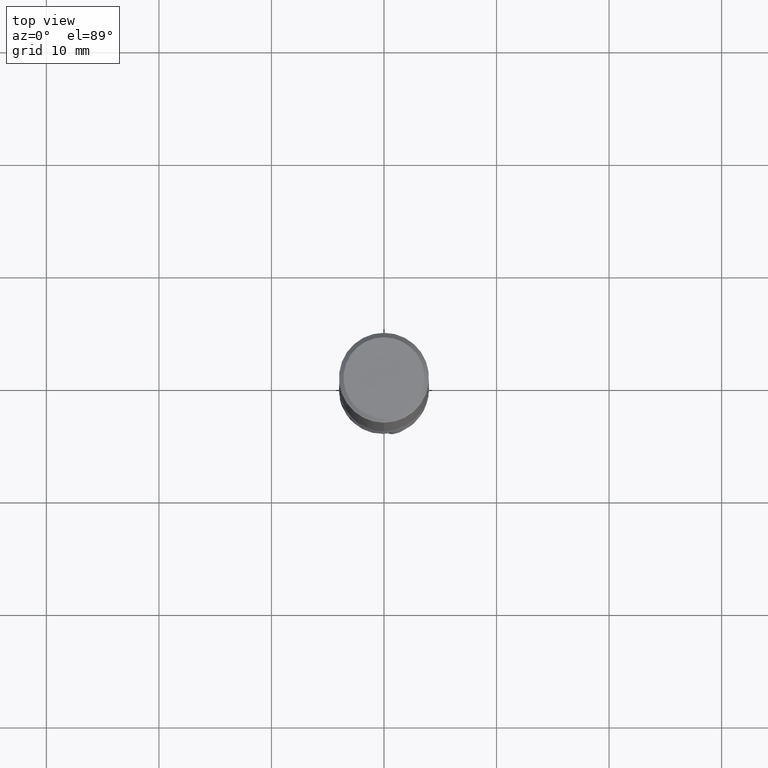
[diagram: clean part render]
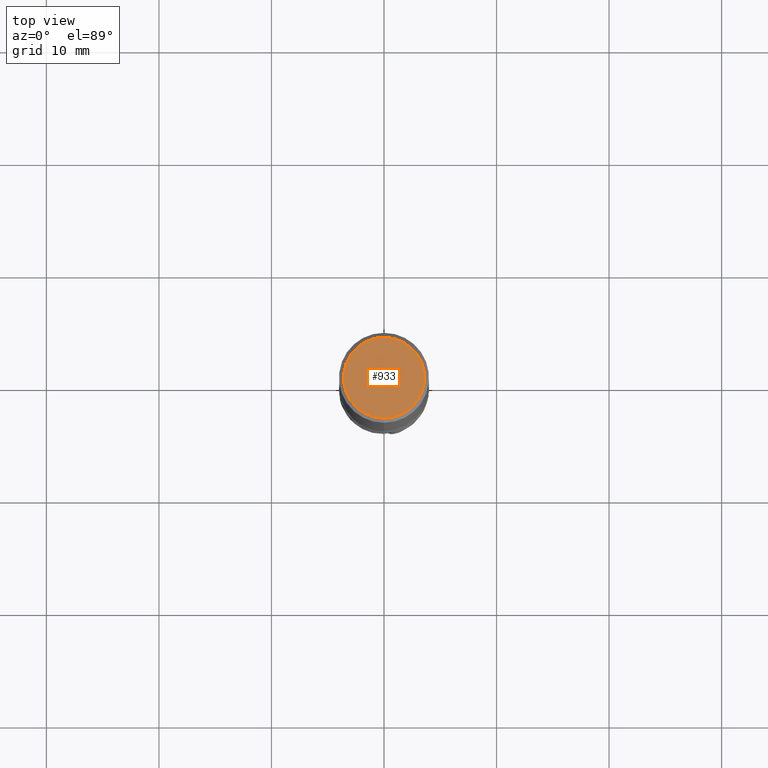
[diagram: same view with one face highlighted and labeled with its STEP entity id]
A machine part, top view. The second image highlights one B-rep face of the part: STEP entity #933.
In plain terms, the highlighted planar face has unit normal (-0, 0, 1).
Its self-contained STEP definition (entity closure, byte-faithful):
#605=EDGE_CURVE('',#1183,#833,#1648,.T.);
#833=VERTEX_POINT('',#1891);
#933=ADVANCED_FACE('',(#2002),#2003,.T.);
#1183=VERTEX_POINT('',#2271);
#1519=EDGE_CURVE('',#833,#1183,#2644,.T.);
#1648=CIRCLE('',#2934,3.6);
#1891=CARTESIAN_POINT('',(4.40858287376056E-016,-3.6,0.0));
#2002=FACE_OUTER_BOUND('',#5338,.T.);
#2003=PLANE('',#5339);
#2271=CARTESIAN_POINT('',(0.0,3.6,0.0));
#2644=CIRCLE('',#10744,3.6);
#2934=AXIS2_PLACEMENT_3D('',#11275,#11276,#11277);
#5338=EDGE_LOOP('',(#11587,#11588));
#5339=AXIS2_PLACEMENT_3D('',#11589,#11590,#11591);
#10744=AXIS2_PLACEMENT_3D('',#12315,#12316,#12317);
#11275=CARTESIAN_POINT('',(0.0,0.0,0.0));
#11276=DIRECTION('',(0.0,0.0,-1.0));
#11277=DIRECTION('',(0.0,1.0,0.0));
#11587=ORIENTED_EDGE('',*,*,#605,.F.);
#11588=ORIENTED_EDGE('',*,*,#1519,.F.);
#11589=CARTESIAN_POINT('',(0.0,1.8,0.0));
#11590=DIRECTION('',(-0.0,0.0,1.0));
#11591=DIRECTION('',(0.0,-1.0,0.0));
#12315=CARTESIAN_POINT('',(0.0,0.0,0.0));
#12316=DIRECTION('',(0.0,0.0,-1.0));
#12317=DIRECTION('',(0.0,1.0,0.0));